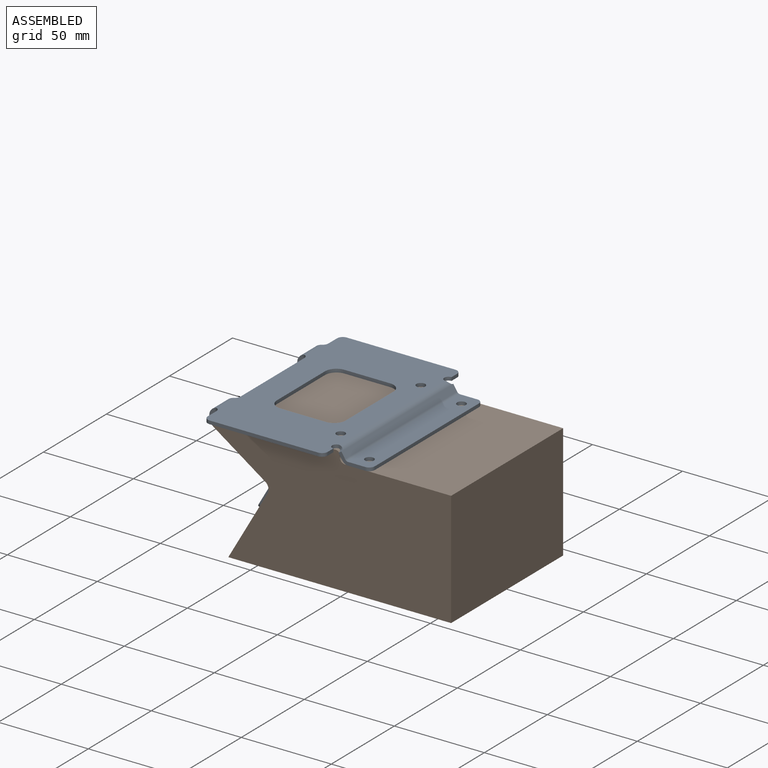
[diagram: assembled view]
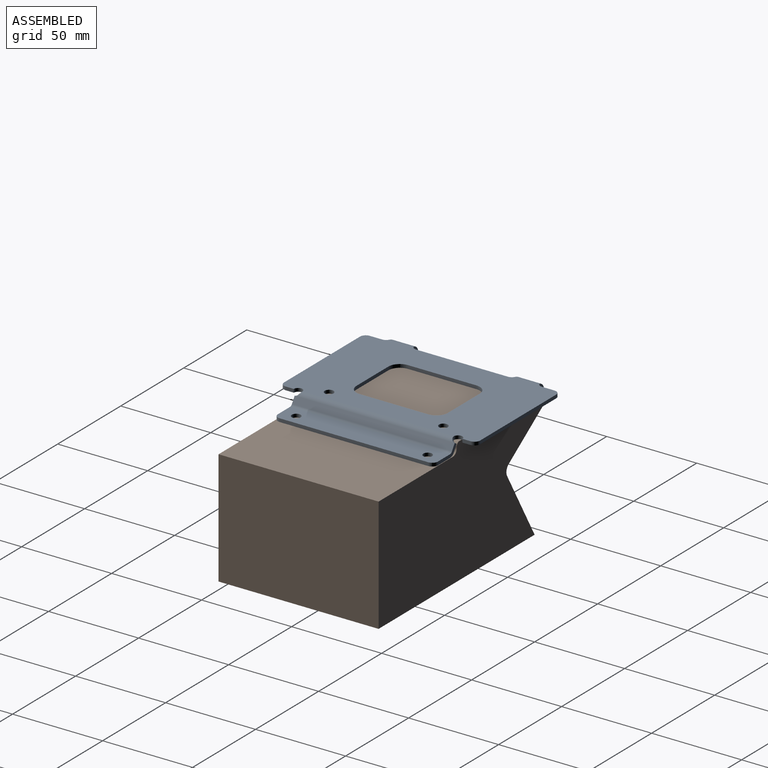
[diagram: assembled view, second angle]
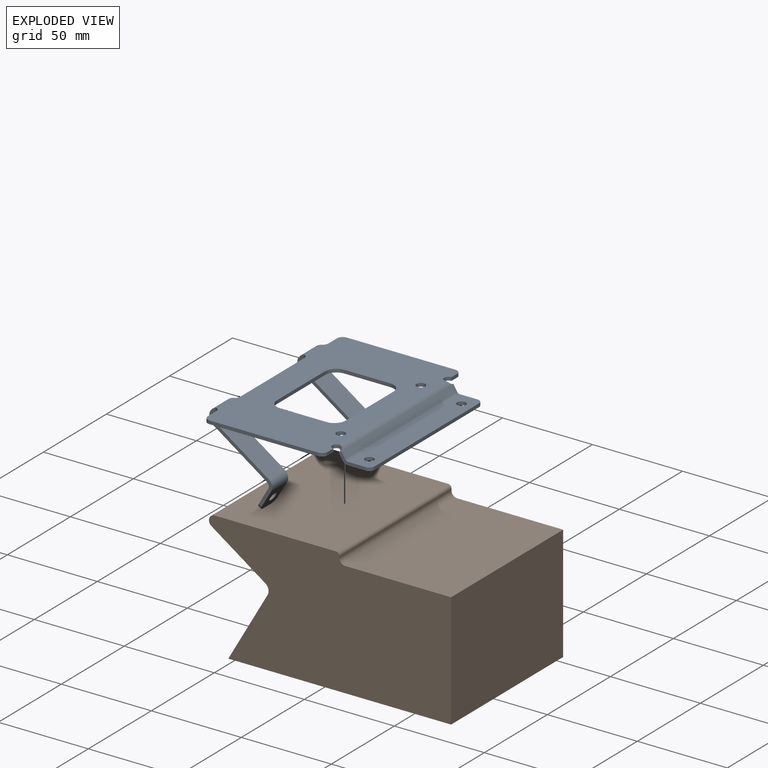
[diagram: exploded view]
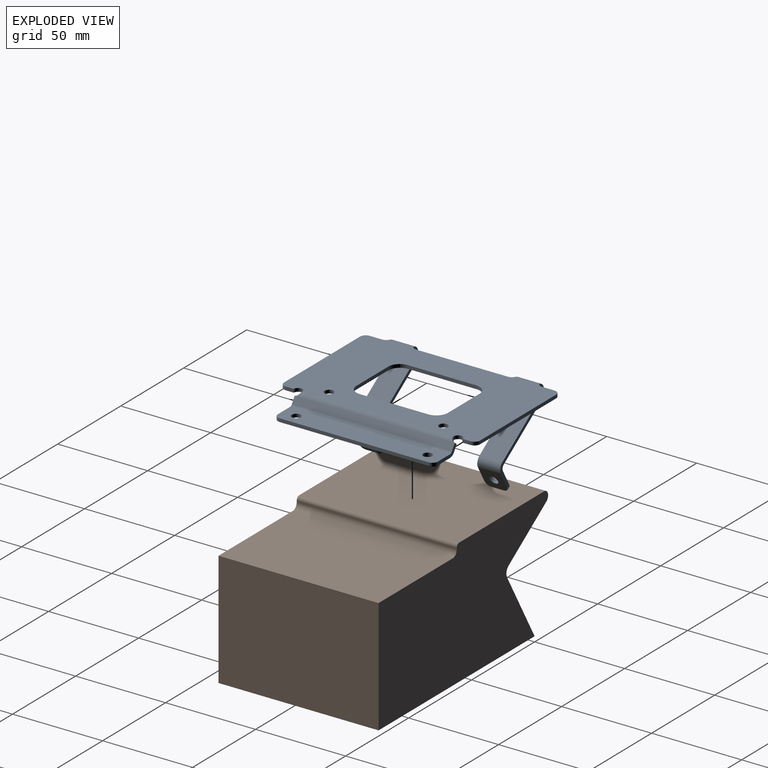
[diagram: exploded view, second angle]
ASSEMBLY  parts=2 mates=2
PART A: 104 faces, bbox 92x109x45.4 mm
  f0: plane 30.99x22.23mm, normal (0,1,0), area 68.4mm2, adj f1,f73,f79,f80
  f1: plane 29.92x20.68mm, normal (-0.57,0,0.82), area 461.9mm2, adj f0,f2,f77,f83
  f2: plane 30.99x22.23mm, normal (0,-1,0), area 68.4mm2, adj f1,f72,f79,f81
  f3: plane 30.99x22.23mm, normal (0,1,0), area 68.4mm2, adj f4,f67,f78,f84
  f4: plane 29.92x20.68mm, normal (-0.57,0,0.82), area 461.9mm2, adj f3,f5,f71,f87
  f5: plane 30.99x22.23mm, normal (0,-1,0), area 68.4mm2, adj f4,f66,f78,f85
  f6: plane 108.97x67.44mm, normal (0,0,1), area 5298.5mm2, adj f19,f20,f21,f22,f23,f24,f25,f26
  f7: plane 4.32x3.68mm, normal (0,-1,0), area 7.4mm2, adj f9,f10,f47,f53
  f8: plane 4.32x3.68mm, normal (0,1,0), area 7.4mm2, adj f9,f10,f50,f54
  f9: plane 88.9x3.31mm, normal (0.85,0,-0.53), area 348.3mm2, adj f7,f8,f52,f56
  f10: plane 88.9x3.31mm, normal (-0.85,0,0.53), area 348.3mm2, adj f7,f8,f51,f55
  f11: plane 4.48x1.88mm, normal (-1,0,0), area 8.4mm2, adj f12,f15,f16,f29
  f12: cylinder r=3.17mm len=1.88mm, axis (0,0,-1), area 3mm2, adj f11,f16,f29,f30
  f13: plane 4.48x1.88mm, normal (-1,0,0), area 8.4mm2, adj f14,f17,f18,f43
  f14: cylinder r=3.17mm len=1.88mm, axis (0,0,-1), area 3mm2, adj f13,f17,f42,f43
  f15: cylinder r=2.38mm len=1.88mm, axis (0,0,-1), area 0.8mm2, adj f11,f16,f29,f46
  f16: plane 6.06x0.41mm, normal (0,0,-1), area 2.2mm2, adj f11,f12,f15,f45
  f17: plane 6.06x0.41mm, normal (0,0,-1), area 2.2mm2, adj f13,f14,f18,f45
  f18: cylinder r=2.38mm len=1.88mm, axis (0,0,-1), area 0.8mm2, adj f13,f17,f43,f44
  f19: cylinder r=6.35mm len=6.35mm, axis (0,0,-1), area 18.7mm2, adj f6,f20,f26,f45
  f20: plane 38.1x1.88mm, normal (1,0,0), area 71.6mm2, adj f6,f19,f21,f45
  f21: cylinder r=6.35mm len=6.35mm, axis (0,0,-1), area 18.7mm2, adj f6,f20,f22,f45
  f22: plane 25.4x1.88mm, normal (0,1,0), area 47.7mm2, adj f6,f21,f23,f45
  f23: cylinder r=6.35mm len=6.35mm, axis (0,0,-1), area 18.7mm2, adj f6,f22,f24,f45
  f24: plane 38.1x1.88mm, normal (-1,0,0), area 71.6mm2, adj f6,f23,f25,f45
  f25: cylinder r=6.35mm len=6.35mm, axis (0,0,-1), area 18.7mm2, adj f6,f24,f26,f45
  f26: plane 25.4x1.88mm, normal (0,-1,0), area 47.7mm2, adj f6,f19,f25,f45
  f27: cylinder r=2.44mm len=4.88mm, axis (0,0,-1), area 28.8mm2, adj f6,f45
  f28: cylinder r=2.44mm len=4.88mm, axis (0,0,-1), area 28.8mm2, adj f6,f45
  f29: plane 6.06x0.41mm, normal (0,0,1), area 2.2mm2, adj f6,f11,f12,f15
  f30: cylinder r=3.17mm len=2.77mm, axis (0,0,-1), area 6.3mm2, adj f6,f12,f31,f45
  f31: plane 60.33x1.88mm, normal (0,1,0), area 113.4mm2, adj f6,f30,f32,f45
  f32: cylinder r=3.17mm len=3.18mm, axis (0,0,-1), area 9.4mm2, adj f6,f31,f33,f45
  f33: plane 6.86x1.88mm, normal (1,0,0), area 12.9mm2, adj f6,f32,f34,f45
  f34: cylinder r=3.17mm len=2.46mm, axis (0,0,-1), area 5.3mm2, adj f6,f33,f45,f74
  f35: cylinder r=3.17mm len=2.46mm, axis (0,0,-1), area 5.3mm2, adj f6,f36,f45,f75
  f36: plane 50.8x1.88mm, normal (1,0,0), area 95.5mm2, adj f6,f35,f37,f45
  f37: cylinder r=3.17mm len=2.46mm, axis (0,0,-1), area 5.3mm2, adj f6,f36,f45,f68
  f38: cylinder r=3.17mm len=2.46mm, axis (0,0,-1), area 5.3mm2, adj f6,f39,f45,f69
  f39: plane 6.86x1.88mm, normal (1,0,0), area 12.9mm2, adj f6,f38,f40,f45
  f40: cylinder r=3.17mm len=3.18mm, axis (0,0,-1), area 9.4mm2, adj f6,f39,f41,f45
  f41: plane 60.33x1.88mm, normal (0,-1,0), area 113.4mm2, adj f6,f40,f42,f45
  f42: cylinder r=3.17mm len=2.77mm, axis (0,0,-1), area 6.3mm2, adj f6,f14,f41,f45
  f43: plane 6.06x0.41mm, normal (0,0,1), area 2.2mm2, adj f6,f13,f14,f18
  f44: cylinder r=2.38mm len=4.69mm, axis (0,0,-1), area 12.5mm2, adj f6,f18,f45,f48
  f45: plane 108.97x67.44mm, normal (0,0,-1), area 5298.5mm2, adj f16,f17,f19,f20,f21,f22,f23,f24
  f46: cylinder r=2.38mm len=4.69mm, axis (0,0,-1), area 12.5mm2, adj f6,f15,f45,f49
  f47: plane 1.61x1.07mm, normal (0,-1,0), area 0.1mm2, adj f7,f48,f51,f52
  f48: bspline ~3.14x2.73mm, area 7.8mm2, adj f44,f47,f51,f52
  f49: bspline ~3.14x2.73mm, area 7.8mm2, adj f46,f50,f51,f52
  f50: plane 1.61x1.07mm, normal (0,1,0), area 0.1mm2, adj f8,f49,f51,f52
  f51: cylinder r=3.76mm len=88.9mm, axis (0,-1,0), area 322.5mm2, adj f6,f10,f47,f48,f49,f50
  f52: cylinder r=1.88mm len=88.9mm, axis (0,-1,0), area 161.2mm2, adj f9,f45,f47,f48,f49,f50
  f53: plane 3.18x2.76mm, normal (0,-1,0), area 5.3mm2, adj f7,f55,f56,f65
  f54: plane 3.18x2.76mm, normal (0,1,0), area 5.3mm2, adj f8,f55,f56,f63
  f55: cylinder r=1.88mm len=88.9mm, axis (0,-1,0), area 168.4mm2, adj f10,f53,f54,f62
  f56: cylinder r=3.76mm len=88.9mm, axis (0,-1,0), area 336.8mm2, adj f9,f53,f54,f64
  f57: cylinder r=3.17mm len=3.18mm, axis (0,0,-1), area 9.4mm2, adj f58,f62,f64,f65
  f58: plane 82.55x1.88mm, normal (-1,0,0), area 155.2mm2, adj f57,f59,f62,f64
  f59: cylinder r=3.17mm len=3.18mm, axis (0,0,-1), area 9.4mm2, adj f58,f62,f63,f64
  f60: cylinder r=2.44mm len=4.88mm, axis (0,0,-1), area 28.8mm2, adj f62,f64
  f61: cylinder r=2.44mm len=4.88mm, axis (0,0,-1), area 28.8mm2, adj f62,f64
  f62: plane 88.9x12.7mm, normal (0,0,1), area 1087.2mm2, adj f55,f57,f58,f59,f60,f61,f63,f65
  f63: plane 9.52x1.88mm, normal (0,1,0), area 17.9mm2, adj f54,f59,f62,f64
  f64: plane 88.9x12.7mm, normal (0,0,-1), area 1087.2mm2, adj f56,f57,f58,f59,f60,f61,f63,f65
  f65: plane 9.52x1.88mm, normal (0,-1,0), area 17.9mm2, adj f53,f57,f62,f64
  f66: plane 8.62x3.57mm, normal (0,-1,0), area 15.8mm2, adj f5,f69,f70,f71
  f67: plane 8.62x3.57mm, normal (0,1,0), area 15.8mm2, adj f3,f68,f70,f71
  f68: bspline ~2.37x2.25mm, area 4.1mm2, adj f37,f67,f70,f71
  f69: bspline ~2.37x2.25mm, area 4.1mm2, adj f38,f66,f70,f71
  f70: cylinder r=5.05mm len=14.13mm, axis (0,1,0), area 164.6mm2, adj f6,f66,f67,f68,f69,f78
  f71: cylinder r=3.17mm len=14.13mm, axis (0,1,0), area 103.4mm2, adj f4,f45,f66,f67,f68,f69
  f72: plane 8.62x3.57mm, normal (0,-1,0), area 15.8mm2, adj f2,f75,f76,f77
  f73: plane 8.62x3.57mm, normal (0,1,0), area 15.8mm2, adj f0,f74,f76,f77
  f74: bspline ~2.37x2.25mm, area 4.1mm2, adj f34,f73,f76,f77
  f75: bspline ~2.37x2.25mm, area 4.1mm2, adj f35,f72,f76,f77
  f76: cylinder r=5.05mm len=14.13mm, axis (0,1,0), area 164.6mm2, adj f6,f72,f73,f74,f75,f79
  f77: cylinder r=3.17mm len=14.13mm, axis (0,1,0), area 103.4mm2, adj f1,f45,f72,f73,f74,f75
  f78: plane 29.92x20.68mm, normal (0.57,0,-0.82), area 461.9mm2, adj f3,f5,f70,f86
  f79: plane 29.92x20.68mm, normal (0.57,0,-0.82), area 461.9mm2, adj f0,f2,f76,f82
  f80: plane 5.61x2.9mm, normal (0,1,0), area 9.2mm2, adj f0,f82,f83,f95
  f81: plane 5.61x2.9mm, normal (0,-1,0), area 9.2mm2, adj f2,f82,f83,f93
  f82: cylinder r=2.36mm len=12.7mm, axis (0,1,0), area 44.7mm2, adj f79,f80,f81,f92
  f83: cylinder r=4.24mm len=12.7mm, axis (0,1,0), area 80.2mm2, adj f1,f80,f81,f94
  f84: plane 5.61x2.9mm, normal (0,1,0), area 9.2mm2, adj f3,f86,f87,f103
  f85: plane 5.61x2.9mm, normal (0,-1,0), area 9.2mm2, adj f5,f86,f87,f101
  f86: cylinder r=2.36mm len=12.7mm, axis (0,1,0), area 44.7mm2, adj f78,f84,f85,f100
  f87: cylinder r=4.24mm len=12.7mm, axis (0,1,0), area 80.2mm2, adj f4,f84,f85,f102
  f88: cylinder r=3.17mm len=3.69mm, axis (-0.87,0,-0.5), area 9.4mm2, adj f89,f92,f94,f95
  f89: plane 6.35x1.63mm, normal (0.5,0,-0.87), area 11.9mm2, adj f88,f90,f92,f94
  f90: cylinder r=3.17mm len=3.69mm, axis (-0.87,0,-0.5), area 9.4mm2, adj f89,f92,f93,f94
  f91: cylinder r=2.44mm len=5.16mm, axis (-0.87,0,-0.5), area 28.8mm2, adj f92,f94
  f92: plane 12.7x11.45mm, normal (0.87,0,0.5), area 144.9mm2, adj f82,f88,f89,f90,f91,f93,f95
  f93: plane 9.64x6.65mm, normal (0,-1,0), area 18.9mm2, adj f81,f90,f92,f94
  f94: plane 12.7x11.45mm, normal (-0.87,0,-0.5), area 144.9mm2, adj f83,f88,f89,f90,f91,f93,f95
  f95: plane 9.64x6.65mm, normal (0,1,0), area 18.9mm2, adj f80,f88,f92,f94
  f96: cylinder r=3.17mm len=3.69mm, axis (-0.87,0,-0.5), area 9.4mm2, adj f97,f100,f102,f103
  f97: plane 6.35x1.63mm, normal (0.5,0,-0.87), area 11.9mm2, adj f96,f98,f100,f102
  f98: cylinder r=3.17mm len=3.69mm, axis (-0.87,0,-0.5), area 9.4mm2, adj f97,f100,f101,f102
  f99: cylinder r=2.44mm len=5.16mm, axis (-0.87,0,-0.5), area 28.8mm2, adj f100,f102
  f100: plane 12.7x11.45mm, normal (0.87,0,0.5), area 144.9mm2, adj f86,f96,f97,f98,f99,f101,f103
  f101: plane 9.64x6.65mm, normal (0,-1,0), area 18.9mm2, adj f85,f98,f100,f102
  f102: plane 12.7x11.45mm, normal (-0.87,0,-0.5), area 144.9mm2, adj f87,f96,f97,f98,f99,f101,f103
  f103: plane 9.64x6.65mm, normal (0,1,0), area 18.9mm2, adj f84,f96,f100,f102
PART B: 13 faces, bbox 134.5x88.9x69.9 mm
  f0: plane 88.9x37.77mm, normal (-0.87,0,0.5), area 3877mm2, adj f1,f7,f8,f9
  f1: plane 123.79x88.9mm, normal (0,0,-1), area 11004.5mm2, adj f0,f2,f7,f8
  f2: plane 88.9x63.91mm, normal (1,0,0), area 5681.3mm2, adj f1,f3,f7,f8
  f3: plane 88.9x58.85mm, normal (0,0,1), area 5231.9mm2, adj f2,f7,f8,f10
  f4: plane 88.9x0.89mm, normal (1,0,0), area 79mm2, adj f7,f8,f10,f12
  f5: plane 88.9x67.45mm, normal (0,0,1), area 5996.1mm2, adj f7,f8,f11,f12
  f6: plane 88.9x29.92mm, normal (-0.57,0,-0.82), area 3233.5mm2, adj f7,f8,f9,f11
  f7: plane 134.53x69.85mm, normal (0,-1,0), area 7687.6mm2, adj f0,f1,f2,f3,f4,f5,f6,f9
  f8: plane 134.53x69.85mm, normal (0,1,0), area 7687.6mm2, adj f0,f1,f2,f3,f4,f5,f6,f9
  f9: cylinder r=4.24mm len=88.9mm, axis (0,-1,0), area 561.7mm2, adj f0,f6,f7,f8
  f10: cylinder r=3.17mm len=88.9mm, axis (0,-1,0), area 443.4mm2, adj f3,f4,f7,f8
  f11: cylinder r=3.17mm len=88.9mm, axis (0,1,0), area 716mm2, adj f5,f6,f7,f8
  f12: cylinder r=1.88mm len=88.9mm, axis (0,1,0), area 262.5mm2, adj f4,f5,f7,f8
PLACE A rot(axis=(0,0,1),180deg) t=(82.17,-44.74,69.85)mm
PLACE B at identity fixed
MATE planar B.f5 <-> A.f45  axis (0,0,1) through (26.16,-44.45,69.85)mm
MATE cylindrical B.f11 <-> A.f70  axis (0,-1,0) through (-7.57,-88.9,66.68)mm
